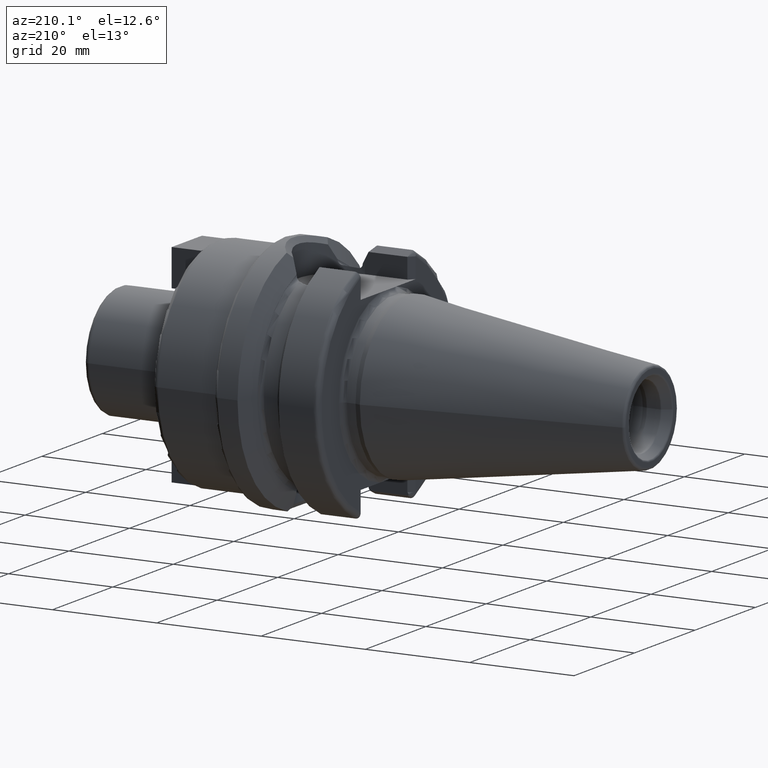
[diagram: clean part render]
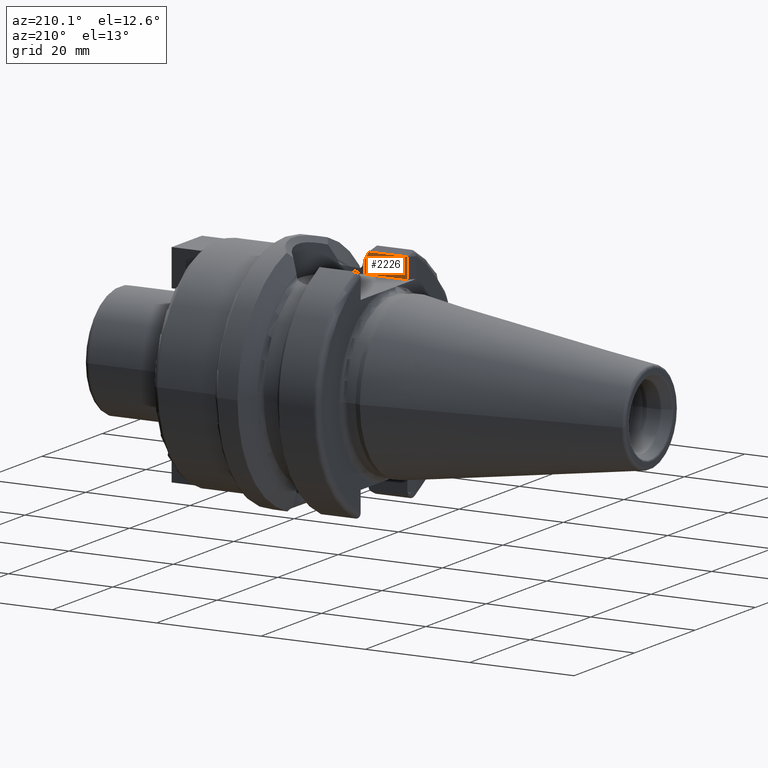
[diagram: same view with one face highlighted and labeled with its STEP entity id]
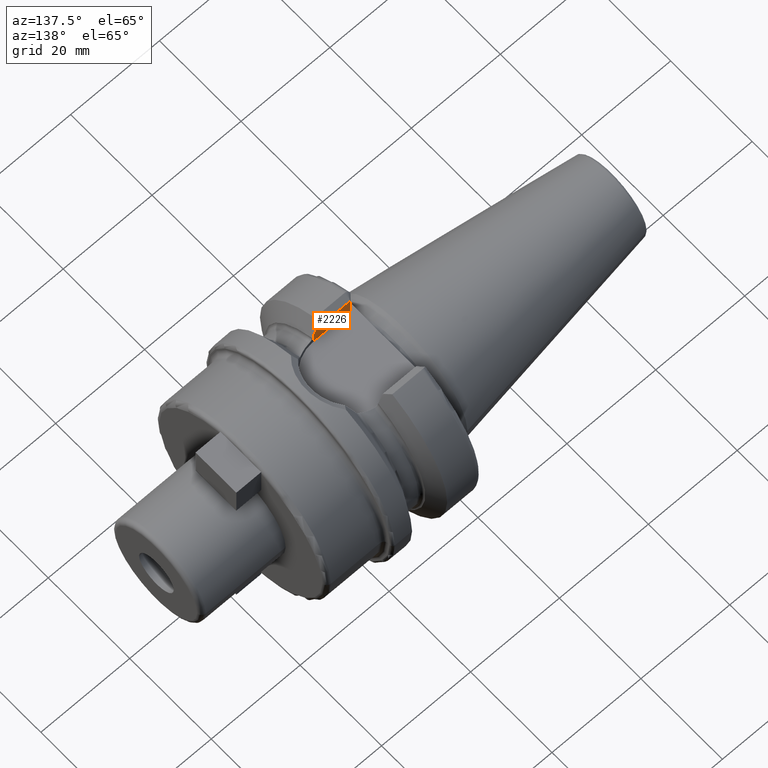
[diagram: same view with one face highlighted and labeled with its STEP entity id]
A machine part, auxiliary view. The second image highlights one B-rep face of the part: STEP entity #2226.
A second angle (auxiliary view) of the same face is appended — the face is thin or edge-on in the first view.
In plain terms, the highlighted planar face has unit normal (0, -1, 0).
Its self-contained STEP definition (entity closure, byte-faithful):
#482=DIRECTION('',(0.E0,0.E0,1.E0));
#483=VECTOR('',#482,2.558652128134E0);
#484=CARTESIAN_POINT('',(1.1155E1,-8.095E0,1.615E1));
#485=LINE('',#484,#483);
#558=CARTESIAN_POINT('',(1.045597922678E1,-8.095E0,2.002101583337E1));
#559=CARTESIAN_POINT('',(1.057548285870E1,-8.095E0,1.979775066590E1));
#560=CARTESIAN_POINT('',(1.081149734599E1,-8.095E0,1.935576218154E1));
#561=CARTESIAN_POINT('',(1.104150413363E1,-8.095E0,1.892284548399E1));
#562=CARTESIAN_POINT('',(1.1155E1,-8.095E0,1.870865212813E1));
#564=DIRECTION('',(-1.E0,0.E0,0.E0));
#565=VECTOR('',#564,7.455979226776E0);
#566=CARTESIAN_POINT('',(1.045597922678E1,-8.095E0,2.002101583337E1));
#567=LINE('',#566,#565);
#568=DIRECTION('',(0.E0,0.E0,-1.E0));
#569=VECTOR('',#568,3.871015833369E0);
#570=CARTESIAN_POINT('',(3.E0,-8.095E0,2.002101583337E1));
#571=LINE('',#570,#569);
#666=DIRECTION('',(1.E0,0.E0,0.E0));
#667=VECTOR('',#666,8.155E0);
#668=CARTESIAN_POINT('',(3.E0,-8.095E0,1.615E1));
#669=LINE('',#668,#667);
#1482=CARTESIAN_POINT('',(1.1155E1,-8.095E0,1.615E1));
#1484=VERTEX_POINT('',#1482);
#1500=VERTEX_POINT('',#558);
#1501=VERTEX_POINT('',#562);
#1518=CARTESIAN_POINT('',(3.E0,-8.095E0,2.002101583337E1));
#1519=CARTESIAN_POINT('',(3.E0,-8.095E0,1.615E1));
#1520=VERTEX_POINT('',#1518);
#1521=VERTEX_POINT('',#1519);
#2211=CARTESIAN_POINT('',(1.8E0,-8.095E0,1.615E1));
#2212=DIRECTION('',(0.E0,-1.E0,0.E0));
#2213=DIRECTION('',(1.E0,0.E0,0.E0));
#2214=AXIS2_PLACEMENT_3D('',#2211,#2212,#2213);
#2215=PLANE('',#2214);
#2216=ORIENTED_EDGE('',*,*,#1910,.F.);
#2218=ORIENTED_EDGE('',*,*,#2217,.T.);
#2220=ORIENTED_EDGE('',*,*,#2219,.T.);
#2222=ORIENTED_EDGE('',*,*,#2221,.T.);
#2223=ORIENTED_EDGE('',*,*,#2188,.T.);
#2224=EDGE_LOOP('',(#2216,#2218,#2220,#2222,#2223));
#2225=FACE_OUTER_BOUND('',#2224,.F.);
#2226=ADVANCED_FACE('',(#2225),#2215,.F.);
#563=B_SPLINE_CURVE_WITH_KNOTS('',3,(#558,#559,#560,#561,#562),.UNSPECIFIED.,
.F.,.F.,(4,1,4),(0.E0,5.E-1,1.E0),.UNSPECIFIED.);
#1910=EDGE_CURVE('',#1500,#1501,#563,.T.);
#2188=EDGE_CURVE('',#1484,#1501,#485,.T.);
#2217=EDGE_CURVE('',#1500,#1520,#567,.T.);
#2219=EDGE_CURVE('',#1520,#1521,#571,.T.);
#2221=EDGE_CURVE('',#1521,#1484,#669,.T.);